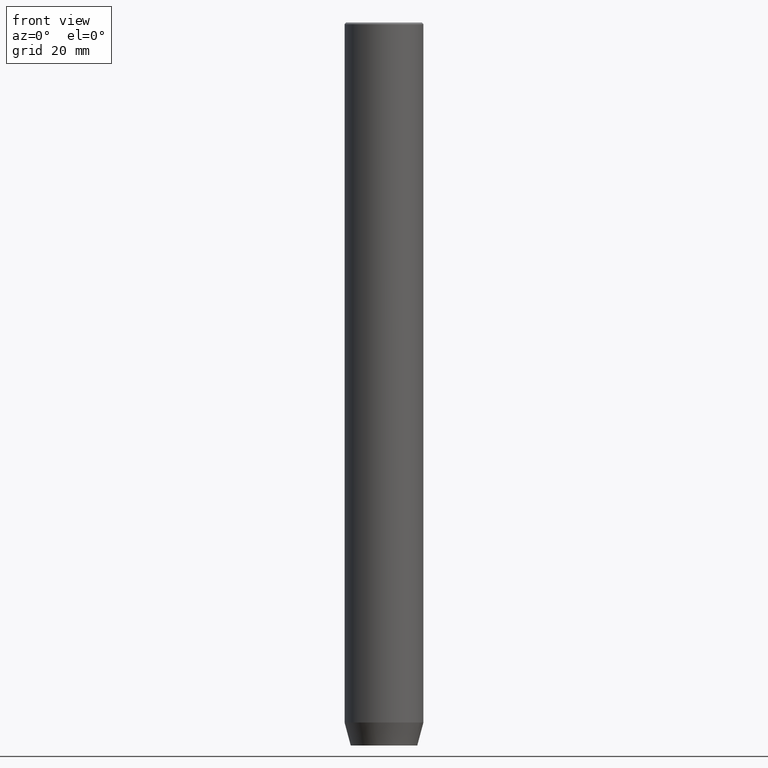
[diagram: clean part render]
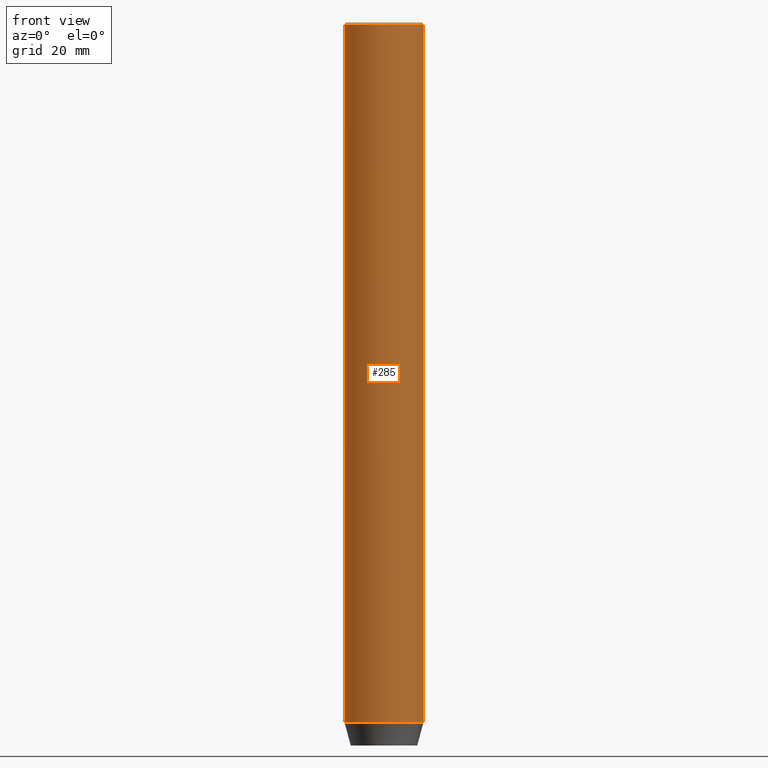
[diagram: same view with one face highlighted and labeled with its STEP entity id]
A machine part, front view. The second image highlights one B-rep face of the part: STEP entity #285.
In plain terms, the highlighted cylindrical surface (partial cylindrical patch) has radius 12 mm, axis along (-0, -0, 1).
Its self-contained STEP definition (entity closure, byte-faithful):
#26 = EDGE_CURVE ( 'NONE', #64, #432, #87, .T. ) ;
#31 = CARTESIAN_POINT ( 'NONE',  ( -12.00000000000000000, 1.469576158976823947E-15, -0.5000000000000056621 ) ) ;
#44 = CARTESIAN_POINT ( 'NONE',  ( -12.00000000000000000, 1.469576158976823947E-15, 0.000000000000000000 ) ) ;
#64 = VERTEX_POINT ( 'NONE', #446 ) ;
#66 = VECTOR ( 'NONE', #225, 1000.000000000000000 ) ;
#78 = EDGE_CURVE ( 'NONE', #309, #456, #417, .T. ) ;
#82 = AXIS2_PLACEMENT_3D ( 'NONE', #354, #192, #266 ) ;
#87 = LINE ( 'NONE', #44, #66 ) ;
#100 = CARTESIAN_POINT ( 'NONE',  ( 12.00000000000000000, 0.000000000000000000, -0.5000000000000056621 ) ) ;
#143 = CARTESIAN_POINT ( 'NONE',  ( 0.000000000000000000, 0.000000000000000000, -212.9999999999999716 ) ) ;
#192 = DIRECTION ( 'NONE',  ( -0.000000000000000000, -0.000000000000000000, 1.000000000000000000 ) ) ;
#193 = AXIS2_PLACEMENT_3D ( 'NONE', #295, #516, #467 ) ;
#199 = ORIENTED_EDGE ( 'NONE', *, *, #215, .T. ) ;
#215 = EDGE_CURVE ( 'NONE', #64, #309, #217, .T. ) ;
#216 = CARTESIAN_POINT ( 'NONE',  ( 12.00000000000000000, 0.000000000000000000, -212.9999999999999716 ) ) ;
#217 = CIRCLE ( 'NONE', #574, 12.00000000000000000 ) ;
#225 = DIRECTION ( 'NONE',  ( -0.000000000000000000, -0.000000000000000000, 1.000000000000000000 ) ) ;
#266 = DIRECTION ( 'NONE',  ( 1.000000000000000000, 0.000000000000000000, 0.000000000000000000 ) ) ;
#285 = ADVANCED_FACE ( 'NONE', ( #494 ), #404, .T. ) ;
#295 = CARTESIAN_POINT ( 'NONE',  ( 0.000000000000000000, 0.000000000000000000, -0.5000000000000056621 ) ) ;
#303 = DIRECTION ( 'NONE',  ( -0.000000000000000000, -0.000000000000000000, 1.000000000000000000 ) ) ;
#309 = VERTEX_POINT ( 'NONE', #216 ) ;
#310 = EDGE_CURVE ( 'NONE', #456, #432, #434, .T. ) ;
#320 = DIRECTION ( 'NONE',  ( -0.000000000000000000, -0.000000000000000000, 1.000000000000000000 ) ) ;
#354 = CARTESIAN_POINT ( 'NONE',  ( 0.000000000000000000, 0.000000000000000000, 0.000000000000000000 ) ) ;
#362 = ORIENTED_EDGE ( 'NONE', *, *, #310, .T. ) ;
#370 = CARTESIAN_POINT ( 'NONE',  ( 12.00000000000000000, 0.000000000000000000, 0.000000000000000000 ) ) ;
#397 = DIRECTION ( 'NONE',  ( 1.000000000000000000, 0.000000000000000000, 0.000000000000000000 ) ) ;
#404 = CYLINDRICAL_SURFACE ( 'NONE', #82, 12.00000000000000000 ) ;
#416 = ORIENTED_EDGE ( 'NONE', *, *, #78, .T. ) ;
#417 = LINE ( 'NONE', #370, #527 ) ;
#432 = VERTEX_POINT ( 'NONE', #31 ) ;
#434 = CIRCLE ( 'NONE', #193, 12.00000000000000000 ) ;
#446 = CARTESIAN_POINT ( 'NONE',  ( -12.00000000000000000, 1.469576158976823947E-15, -212.9999999999999716 ) ) ;
#456 = VERTEX_POINT ( 'NONE', #100 ) ;
#467 = DIRECTION ( 'NONE',  ( 1.000000000000000000, 0.000000000000000000, 0.000000000000000000 ) ) ;
#475 = ORIENTED_EDGE ( 'NONE', *, *, #26, .F. ) ;
#494 = FACE_OUTER_BOUND ( 'NONE', #529, .T. ) ;
#516 = DIRECTION ( 'NONE',  ( 0.000000000000000000, 0.000000000000000000, -1.000000000000000000 ) ) ;
#527 = VECTOR ( 'NONE', #320, 1000.000000000000000 ) ;
#529 = EDGE_LOOP ( 'NONE', ( #475, #199, #416, #362 ) ) ;
#574 = AXIS2_PLACEMENT_3D ( 'NONE', #143, #303, #397 ) ;